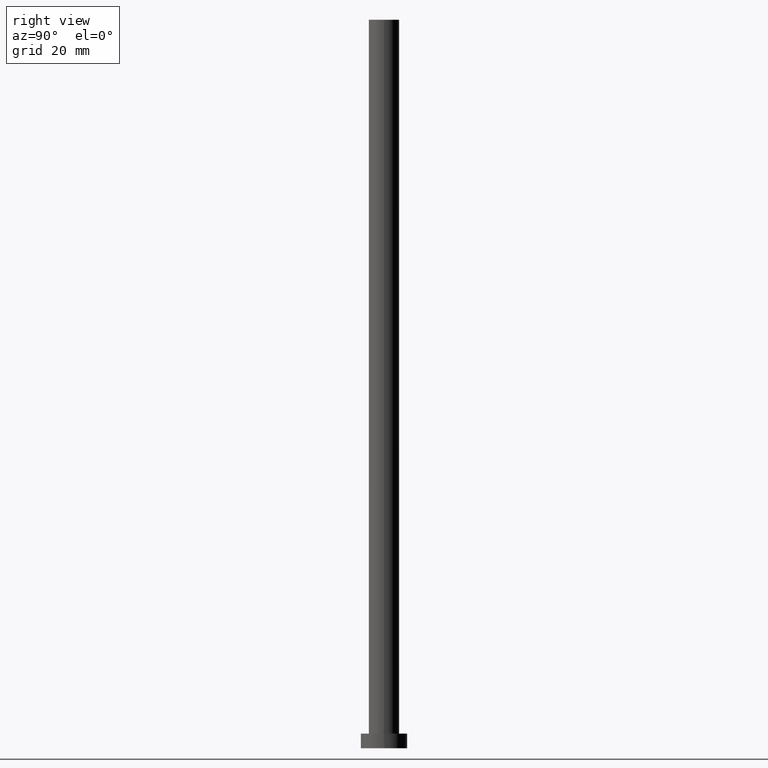
[diagram: clean part render]
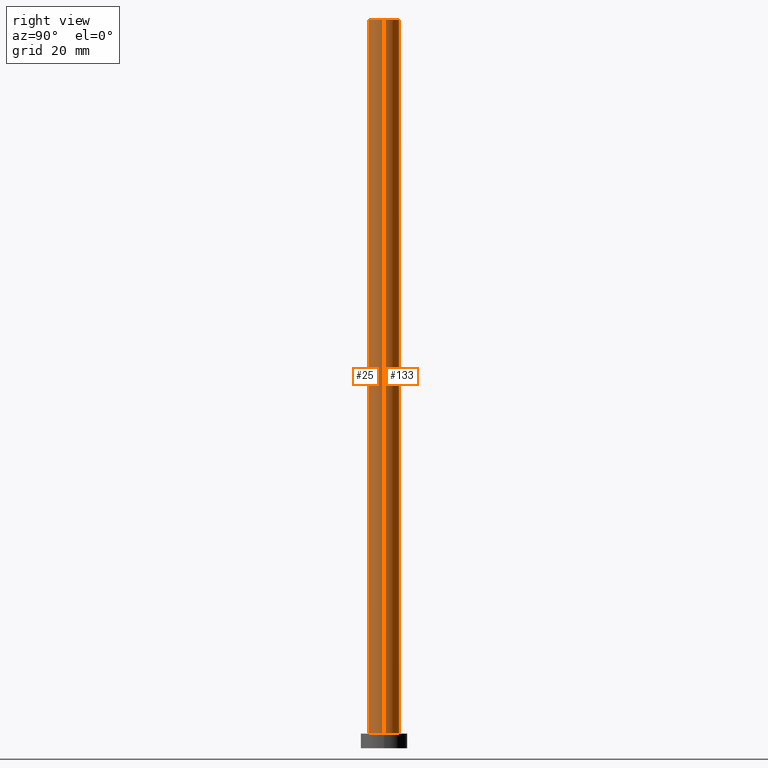
[diagram: same view with one multi-face feature highlighted, each face labeled with its STEP entity id]
A machine part, right view. The highlighted faces form ONE feature: a constant-radius fillet chain: 2 tangent blend faces with common blend radius 5.25 mm. The faces share edges in the B-rep.
Their STEP definitions:
[1] entity #25 (Cylinder):
#10 = CARTESIAN_POINT ( 'NONE',  ( -5.250000000000000888, 0.000000000000000000, 250.0000000000000000 ) ) ;
#11 = CARTESIAN_POINT ( 'NONE',  ( 5.250000000000000888, 6.429395695523605139E-16, 250.0000000000000000 ) ) ;
#19 = CARTESIAN_POINT ( 'NONE',  ( -5.250000000000000888, 0.000000000000000000, 5.000000000000000000 ) ) ;
#25 = ADVANCED_FACE ( 'NONE', ( #199 ), #50, .T. ) ;
#27 = CARTESIAN_POINT ( 'NONE',  ( 0.000000000000000000, 0.000000000000000000, 250.0000000000000000 ) ) ;
#30 = EDGE_LOOP ( 'NONE', ( #76, #98, #107, #192 ) ) ;
#35 = VECTOR ( 'NONE', #182, 1000.000000000000000 ) ;
#50 = CYLINDRICAL_SURFACE ( 'NONE', #158, 5.250000000000000888 ) ;
#54 = CARTESIAN_POINT ( 'NONE',  ( 5.250000000000000888, 6.429395695523605139E-16, 250.0000000000000000 ) ) ;
#62 = EDGE_CURVE ( 'NONE', #203, #215, #162, .T. ) ;
#69 = DIRECTION ( 'NONE',  ( 0.000000000000000000, 0.000000000000000000, 1.000000000000000000 ) ) ;
#76 = ORIENTED_EDGE ( 'NONE', *, *, #62, .F. ) ;
#79 = VECTOR ( 'NONE', #243, 1000.000000000000000 ) ;
#92 = CARTESIAN_POINT ( 'NONE',  ( 5.250000000000000888, 6.429395695523605139E-16, 5.000000000000000000 ) ) ;
#93 = DIRECTION ( 'NONE',  ( 1.000000000000000000, 0.000000000000000000, 0.000000000000000000 ) ) ;
#97 = AXIS2_PLACEMENT_3D ( 'NONE', #247, #189, #149 ) ;
#98 = ORIENTED_EDGE ( 'NONE', *, *, #207, .F. ) ;
#102 = AXIS2_PLACEMENT_3D ( 'NONE', #126, #69, #93 ) ;
#105 = CARTESIAN_POINT ( 'NONE',  ( -5.250000000000000888, 0.000000000000000000, 250.0000000000000000 ) ) ;
#107 = ORIENTED_EDGE ( 'NONE', *, *, #165, .T. ) ;
#118 = LINE ( 'NONE', #10, #35 ) ;
#126 = CARTESIAN_POINT ( 'NONE',  ( 0.000000000000000000, 0.000000000000000000, 5.000000000000000000 ) ) ;
#141 = DIRECTION ( 'NONE',  ( -0.000000000000000000, -0.000000000000000000, -1.000000000000000000 ) ) ;
#142 = DIRECTION ( 'NONE',  ( -1.000000000000000000, 0.000000000000000000, 0.000000000000000000 ) ) ;
#149 = DIRECTION ( 'NONE',  ( 1.000000000000000000, 0.000000000000000000, 0.000000000000000000 ) ) ;
#157 = VERTEX_POINT ( 'NONE', #105 ) ;
#158 = AXIS2_PLACEMENT_3D ( 'NONE', #27, #141, #142 ) ;
#162 = LINE ( 'NONE', #11, #79 ) ;
#165 = EDGE_CURVE ( 'NONE', #157, #172, #118, .T. ) ;
#172 = VERTEX_POINT ( 'NONE', #19 ) ;
#176 = CIRCLE ( 'NONE', #102, 5.250000000000000888 ) ;
#182 = DIRECTION ( 'NONE',  ( -0.000000000000000000, -0.000000000000000000, -1.000000000000000000 ) ) ;
#189 = DIRECTION ( 'NONE',  ( 0.000000000000000000, 0.000000000000000000, 1.000000000000000000 ) ) ;
#190 = EDGE_CURVE ( 'NONE', #172, #215, #176, .T. ) ;
#192 = ORIENTED_EDGE ( 'NONE', *, *, #190, .T. ) ;
#199 = FACE_OUTER_BOUND ( 'NONE', #30, .T. ) ;
#203 = VERTEX_POINT ( 'NONE', #54 ) ;
#207 = EDGE_CURVE ( 'NONE', #157, #203, #244, .T. ) ;
#215 = VERTEX_POINT ( 'NONE', #92 ) ;
#243 = DIRECTION ( 'NONE',  ( -0.000000000000000000, -0.000000000000000000, -1.000000000000000000 ) ) ;
#244 = CIRCLE ( 'NONE', #97, 5.250000000000000888 ) ;
#247 = CARTESIAN_POINT ( 'NONE',  ( 0.000000000000000000, 0.000000000000000000, 250.0000000000000000 ) ) ;
[2] entity #133 (Cylinder):
#5 = ORIENTED_EDGE ( 'NONE', *, *, #108, .F. ) ;
#7 = FACE_OUTER_BOUND ( 'NONE', #255, .T. ) ;
#8 = CIRCLE ( 'NONE', #232, 5.250000000000000888 ) ;
#10 = CARTESIAN_POINT ( 'NONE',  ( -5.250000000000000888, 0.000000000000000000, 250.0000000000000000 ) ) ;
#11 = CARTESIAN_POINT ( 'NONE',  ( 5.250000000000000888, 6.429395695523605139E-16, 250.0000000000000000 ) ) ;
#19 = CARTESIAN_POINT ( 'NONE',  ( -5.250000000000000888, 0.000000000000000000, 5.000000000000000000 ) ) ;
#28 = DIRECTION ( 'NONE',  ( -1.000000000000000000, 0.000000000000000000, 0.000000000000000000 ) ) ;
#35 = VECTOR ( 'NONE', #182, 1000.000000000000000 ) ;
#36 = ORIENTED_EDGE ( 'NONE', *, *, #165, .F. ) ;
#52 = EDGE_CURVE ( 'NONE', #215, #172, #8, .T. ) ;
#54 = CARTESIAN_POINT ( 'NONE',  ( 5.250000000000000888, 6.429395695523605139E-16, 250.0000000000000000 ) ) ;
#57 = ORIENTED_EDGE ( 'NONE', *, *, #52, .T. ) ;
#62 = EDGE_CURVE ( 'NONE', #203, #215, #162, .T. ) ;
#67 = DIRECTION ( 'NONE',  ( 1.000000000000000000, 0.000000000000000000, 0.000000000000000000 ) ) ;
#71 = CIRCLE ( 'NONE', #134, 5.250000000000000888 ) ;
#79 = VECTOR ( 'NONE', #243, 1000.000000000000000 ) ;
#83 = CARTESIAN_POINT ( 'NONE',  ( 0.000000000000000000, 0.000000000000000000, 5.000000000000000000 ) ) ;
#92 = CARTESIAN_POINT ( 'NONE',  ( 5.250000000000000888, 6.429395695523605139E-16, 5.000000000000000000 ) ) ;
#104 = DIRECTION ( 'NONE',  ( 0.000000000000000000, 0.000000000000000000, 1.000000000000000000 ) ) ;
#105 = CARTESIAN_POINT ( 'NONE',  ( -5.250000000000000888, 0.000000000000000000, 250.0000000000000000 ) ) ;
#108 = EDGE_CURVE ( 'NONE', #203, #157, #71, .T. ) ;
#118 = LINE ( 'NONE', #10, #35 ) ;
#123 = CYLINDRICAL_SURFACE ( 'NONE', #221, 5.250000000000000888 ) ;
#133 = ADVANCED_FACE ( 'NONE', ( #7 ), #123, .T. ) ;
#134 = AXIS2_PLACEMENT_3D ( 'NONE', #159, #179, #67 ) ;
#137 = ORIENTED_EDGE ( 'NONE', *, *, #62, .T. ) ;
#157 = VERTEX_POINT ( 'NONE', #105 ) ;
#159 = CARTESIAN_POINT ( 'NONE',  ( 0.000000000000000000, 0.000000000000000000, 250.0000000000000000 ) ) ;
#162 = LINE ( 'NONE', #11, #79 ) ;
#163 = DIRECTION ( 'NONE',  ( 1.000000000000000000, 0.000000000000000000, 0.000000000000000000 ) ) ;
#165 = EDGE_CURVE ( 'NONE', #157, #172, #118, .T. ) ;
#172 = VERTEX_POINT ( 'NONE', #19 ) ;
#179 = DIRECTION ( 'NONE',  ( 0.000000000000000000, 0.000000000000000000, 1.000000000000000000 ) ) ;
#182 = DIRECTION ( 'NONE',  ( -0.000000000000000000, -0.000000000000000000, -1.000000000000000000 ) ) ;
#201 = CARTESIAN_POINT ( 'NONE',  ( 0.000000000000000000, 0.000000000000000000, 250.0000000000000000 ) ) ;
#203 = VERTEX_POINT ( 'NONE', #54 ) ;
#215 = VERTEX_POINT ( 'NONE', #92 ) ;
#221 = AXIS2_PLACEMENT_3D ( 'NONE', #201, #240, #28 ) ;
#232 = AXIS2_PLACEMENT_3D ( 'NONE', #83, #104, #163 ) ;
#240 = DIRECTION ( 'NONE',  ( -0.000000000000000000, -0.000000000000000000, -1.000000000000000000 ) ) ;
#243 = DIRECTION ( 'NONE',  ( -0.000000000000000000, -0.000000000000000000, -1.000000000000000000 ) ) ;
#255 = EDGE_LOOP ( 'NONE', ( #5, #137, #57, #36 ) ) ;